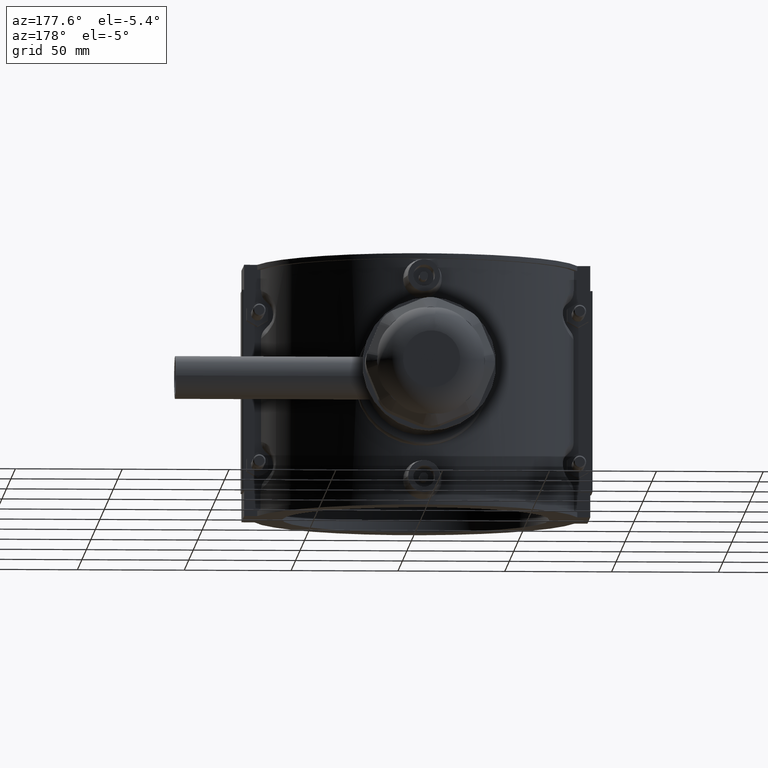
[diagram: clean part render]
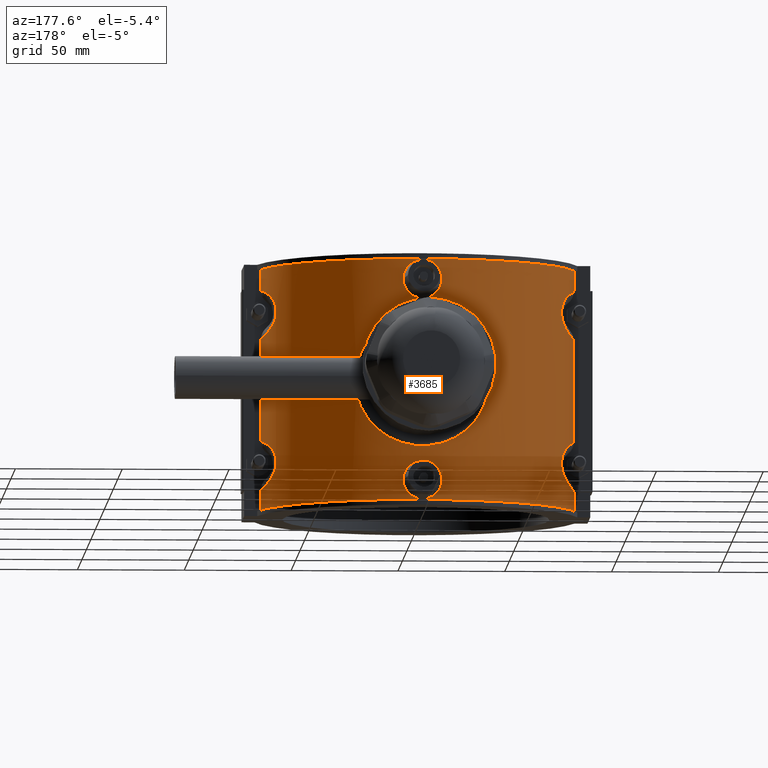
[diagram: same view with one face highlighted and labeled with its STEP entity id]
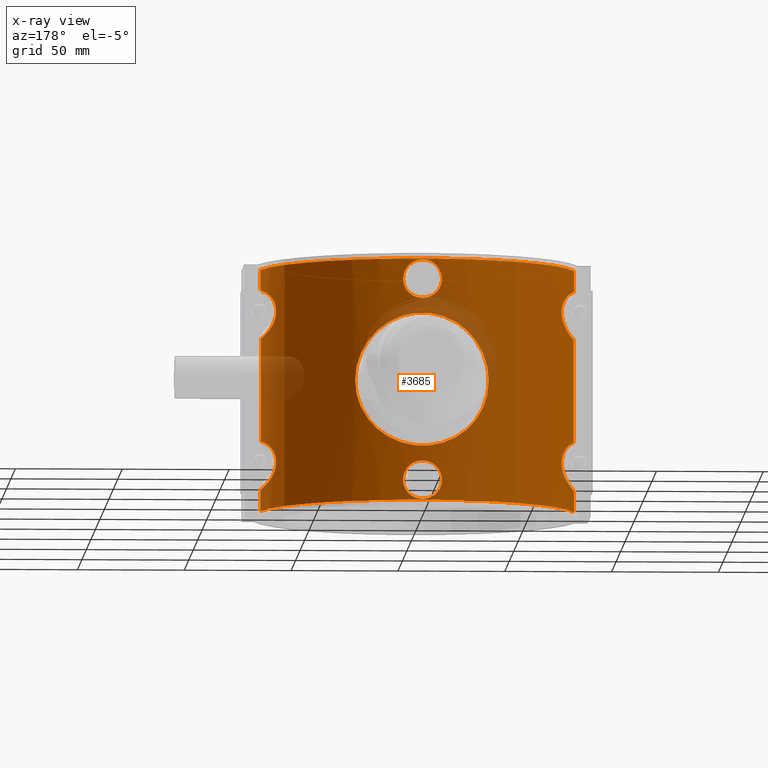
[diagram: x-ray of the same camera — body ghosted, the highlighted face saturated]
A machine part, auxiliary view. The second image highlights one B-rep face of the part: STEP entity #3685.
The next image is the same camera in x-ray: the body ghosted, the highlighted face saturated — about 7% of this face is hidden behind the body in this view.
In plain terms, the highlighted cylindrical surface (partial cylindrical patch) has radius 75 mm, axis along (0, 0, 1).
Its self-contained STEP definition (entity closure, byte-faithful):
#117=LINE('',#6462,#416);
#133=LINE('',#6510,#432);
#137=LINE('',#6518,#436);
#138=LINE('',#6522,#437);
#139=LINE('',#6539,#438);
#140=LINE('',#6556,#439);
#141=LINE('',#6559,#440);
#142=LINE('',#6563,#441);
#143=LINE('',#6580,#442);
#144=LINE('',#6597,#443);
#416=VECTOR('',#4437,9.43999999999999);
#432=VECTOR('',#4479,9.43999999999999);
#436=VECTOR('',#4485,9.43999999999999);
#437=VECTOR('',#4488,0.588591724710401);
#438=VECTOR('',#4489,48.3771834494208);
#439=VECTOR('',#4490,0.588591724710401);
#440=VECTOR('',#4493,9.43999999999999);
#441=VECTOR('',#4496,0.58859172471041);
#442=VECTOR('',#4497,48.3771834494208);
#443=VECTOR('',#4498,0.588591724710401);
#823=CIRCLE('',#3926,75.);
#830=CIRCLE('',#3939,75.);
#834=CIRCLE('',#3947,75.);
#835=CIRCLE('',#3948,75.);
#836=CIRCLE('',#3949,75.);
#837=CIRCLE('',#3950,75.);
#917=FACE_BOUND('',#1276,.T.);
#918=FACE_BOUND('',#1277,.T.);
#919=FACE_BOUND('',#1278,.T.);
#1039=FACE_OUTER_BOUND('',#1275,.T.);
#1275=EDGE_LOOP('',(#2821,#2822,#2823,#2824,#2825,#2826,#2827,#2828,#2829,
#2830,#2831,#2832,#2833,#2834,#2835,#2836,#2837,#2838,#2839,#2840));
#1276=EDGE_LOOP('',(#2841));
#1277=EDGE_LOOP('',(#2842));
#1278=EDGE_LOOP('',(#2843));
#1511=B_SPLINE_CURVE_WITH_KNOTS('',3,(#6364,#6365,#6366,#6367,#6368,#6369,
#6370,#6371,#6372,#6373,#6374,#6375,#6376,#6377,#6378,#6379,#6380,#6381,
#6382,#6383,#6384,#6385,#6386,#6387,#6388,#6389,#6390,#6391,#6392,#6393,
#6394,#6395,#6396,#6397,#6398,#6399,#6400,#6401,#6402,#6403,#6404,#6405,
#6406,#6407,#6408,#6409,#6410,#6411,#6412,#6413,#6414,#6415,#6416,#6417,
#6418,#6419,#6420,#6421,#6422,#6423,#6424,#6425,#6426,#6427,#6428,#6429),
 .UNSPECIFIED.,.T.,.F.,(4,2,2,2,2,2,2,2,2,2,2,2,2,2,2,2,2,2,2,2,2,2,2,2,
2,2,2,2,2,2,2,2,4),(0.,0.596925535406066,1.19385107081213,1.7907766062182,
2.38770214162426,2.98390635362242,3.58011056562057,4.17631477761873,4.77251898961688,
5.36872320161503,5.96492741361319,6.56113162561134,7.1573358376095,7.75426137301556,
8.35118690842163,8.94811244382769,9.54503797923376,10.1419635146398,10.7388890500459,
11.335814585452,11.932740120858,12.5289443328562,13.1251485448543,13.7213527568525,
14.3175569688506,14.9137611808488,15.5099653928469,16.1061696048451,16.7023738168433,
17.2992993522493,17.8962248876554,18.4931504230615,19.0900759584675),
 .UNSPECIFIED.);
#1512=B_SPLINE_CURVE_WITH_KNOTS('',3,(#6524,#6525,#6526,#6527,#6528,#6529,
#6530,#6531,#6532,#6533,#6534,#6535,#6536,#6537),.UNSPECIFIED.,.F.,.F.,
(4,1,1,1,1,1,1,1,1,1,1,4),(-5.00102073920075,-4.37242310409207,-3.7438254689834,
-3.53429292394718,-3.11522783387473,-2.90569528883851,-2.69616274380228,
-2.48663019876606,-2.17233138121172,-1.85803256365739,-1.22943492854871,
-0.600837293440042),.UNSPECIFIED.);
#1513=B_SPLINE_CURVE_WITH_KNOTS('',3,(#6541,#6542,#6543,#6544,#6545,#6546,
#6547,#6548,#6549,#6550,#6551,#6552,#6553,#6554),.UNSPECIFIED.,.F.,.F.,
(4,1,1,1,1,1,1,1,1,1,1,4),(-5.00102073958228,-4.37242310439151,-3.74382546920074,
-3.42952665160536,-3.11522783400997,-2.69616274388279,-2.4866301988192,
-2.27709765375561,-2.06756510869202,-1.85803256362843,-1.22943492843766,
-0.600837293246895),.UNSPECIFIED.);
#1514=B_SPLINE_CURVE_WITH_KNOTS('',3,(#6565,#6566,#6567,#6568,#6569,#6570,
#6571,#6572,#6573,#6574,#6575,#6576,#6577,#6578),.UNSPECIFIED.,.F.,.F.,
(4,1,1,1,1,1,1,1,1,1,1,4),(-5.00088645742513,-4.37228881969447,-3.74369118196381,
-3.42939236309848,-3.11509354423315,-2.69602845241271,-2.48649590650249,
-2.27696336059227,-2.06743081468205,-1.85789826877183,-1.22930063104117,
-0.600702993310512),.UNSPECIFIED.);
#1515=B_SPLINE_CURVE_WITH_KNOTS('',3,(#6582,#6583,#6584,#6585,#6586,#6587,
#6588,#6589,#6590,#6591,#6592,#6593,#6594,#6595),.UNSPECIFIED.,.F.,.F.,
(4,1,1,1,1,1,1,1,1,1,1,4),(-5.00102073914786,-4.37242310379837,-3.74382546844888,
-3.42952665077414,-3.11522783309939,-2.9056952879829,-2.4866301977499,-2.27709765263341,
-2.06756510751691,-1.85803256240042,-1.22943492705093,-0.600837291701439),
 .UNSPECIFIED.);
#1516=B_SPLINE_CURVE_WITH_KNOTS('',3,(#6600,#6601,#6602,#6603,#6604,#6605,
#6606,#6607,#6608,#6609,#6610,#6611,#6612,#6613,#6614,#6615,#6616,#6617,
#6618,#6619,#6620,#6621,#6622,#6623,#6624,#6625,#6626,#6627,#6628,#6629,
#6630,#6631,#6632,#6633),.UNSPECIFIED.,.T.,.F.,(4,2,2,2,2,2,2,2,2,2,2,2,
2,2,2,2,4),(0.,0.341668696491551,0.683337392983103,1.02458425500419,1.36583111702527,
1.70707797904636,2.04832484106744,2.38999353755899,2.73166223405054,3.0733309305421,
3.41499962703365,3.75624648905473,4.09749335107582,4.4387402130969,4.77998707511798,
5.12165577160954,5.46332446810109),.UNSPECIFIED.);
#1517=B_SPLINE_CURVE_WITH_KNOTS('',3,(#6635,#6636,#6637,#6638,#6639,#6640,
#6641,#6642,#6643,#6644,#6645,#6646,#6647,#6648,#6649,#6650,#6651,#6652,
#6653,#6654,#6655,#6656,#6657,#6658,#6659,#6660,#6661,#6662,#6663,#6664,
#6665,#6666,#6667,#6668),.UNSPECIFIED.,.T.,.F.,(4,2,2,2,2,2,2,2,2,2,2,2,
2,2,2,2,4),(0.,0.341668696491551,0.683337392983103,1.02458425500419,1.36583111702527,
1.70707797904636,2.04832484106744,2.38999353755899,2.73166223405054,3.0733309305421,
3.41499962703365,3.75624648905473,4.09749335107582,4.4387402130969,4.77998707511798,
5.12165577160954,5.46332446810109),.UNSPECIFIED.);
#1668=VERTEX_POINT('',#6363);
#1673=VERTEX_POINT('',#6440);
#1674=VERTEX_POINT('',#6442);
#1681=VERTEX_POINT('',#6461);
#1692=VERTEX_POINT('',#6488);
#1693=VERTEX_POINT('',#6490);
#1700=VERTEX_POINT('',#6509);
#1703=VERTEX_POINT('',#6517);
#1704=VERTEX_POINT('',#6519);
#1705=VERTEX_POINT('',#6521);
#1706=VERTEX_POINT('',#6523);
#1707=VERTEX_POINT('',#6538);
#1708=VERTEX_POINT('',#6540);
#1709=VERTEX_POINT('',#6555);
#1710=VERTEX_POINT('',#6558);
#1711=VERTEX_POINT('',#6560);
#1712=VERTEX_POINT('',#6562);
#1713=VERTEX_POINT('',#6564);
#1714=VERTEX_POINT('',#6579);
#1715=VERTEX_POINT('',#6581);
#1716=VERTEX_POINT('',#6596);
#1717=VERTEX_POINT('',#6599);
#1718=VERTEX_POINT('',#6634);
#2080=EDGE_CURVE('',#1668,#1668,#1511,.T.);
#2087=EDGE_CURVE('',#1673,#1674,#823,.T.);
#2095=EDGE_CURVE('',#1681,#1673,#117,.T.);
#2109=EDGE_CURVE('',#1693,#1692,#830,.T.);
#2118=EDGE_CURVE('',#1693,#1700,#133,.T.);
#2122=EDGE_CURVE('',#1703,#1674,#137,.T.);
#2123=EDGE_CURVE('',#1703,#1704,#834,.T.);
#2124=EDGE_CURVE('',#1704,#1705,#138,.T.);
#2125=EDGE_CURVE('',#1706,#1705,#1512,.T.);
#2126=EDGE_CURVE('',#1706,#1707,#139,.T.);
#2127=EDGE_CURVE('',#1708,#1707,#1513,.T.);
#2128=EDGE_CURVE('',#1708,#1709,#140,.T.);
#2129=EDGE_CURVE('',#1709,#1700,#835,.T.);
#2130=EDGE_CURVE('',#1692,#1710,#141,.T.);
#2131=EDGE_CURVE('',#1710,#1711,#836,.T.);
#2132=EDGE_CURVE('',#1711,#1712,#142,.T.);
#2133=EDGE_CURVE('',#1713,#1712,#1514,.T.);
#2134=EDGE_CURVE('',#1713,#1714,#143,.T.);
#2135=EDGE_CURVE('',#1715,#1714,#1515,.T.);
#2136=EDGE_CURVE('',#1715,#1716,#144,.T.);
#2137=EDGE_CURVE('',#1716,#1681,#837,.T.);
#2138=EDGE_CURVE('',#1717,#1717,#1516,.T.);
#2139=EDGE_CURVE('',#1718,#1718,#1517,.T.);
#2821=ORIENTED_EDGE('',*,*,#2087,.T.);
#2822=ORIENTED_EDGE('',*,*,#2122,.F.);
#2823=ORIENTED_EDGE('',*,*,#2123,.T.);
#2824=ORIENTED_EDGE('',*,*,#2124,.T.);
#2825=ORIENTED_EDGE('',*,*,#2125,.F.);
#2826=ORIENTED_EDGE('',*,*,#2126,.T.);
#2827=ORIENTED_EDGE('',*,*,#2127,.F.);
#2828=ORIENTED_EDGE('',*,*,#2128,.T.);
#2829=ORIENTED_EDGE('',*,*,#2129,.T.);
#2830=ORIENTED_EDGE('',*,*,#2118,.F.);
#2831=ORIENTED_EDGE('',*,*,#2109,.T.);
#2832=ORIENTED_EDGE('',*,*,#2130,.T.);
#2833=ORIENTED_EDGE('',*,*,#2131,.T.);
#2834=ORIENTED_EDGE('',*,*,#2132,.T.);
#2835=ORIENTED_EDGE('',*,*,#2133,.F.);
#2836=ORIENTED_EDGE('',*,*,#2134,.T.);
#2837=ORIENTED_EDGE('',*,*,#2135,.F.);
#2838=ORIENTED_EDGE('',*,*,#2136,.T.);
#2839=ORIENTED_EDGE('',*,*,#2137,.T.);
#2840=ORIENTED_EDGE('',*,*,#2095,.T.);
#2841=ORIENTED_EDGE('',*,*,#2080,.T.);
#2842=ORIENTED_EDGE('',*,*,#2138,.T.);
#2843=ORIENTED_EDGE('',*,*,#2139,.T.);
#3568=CYLINDRICAL_SURFACE('',#3946,75.);
#3685=ADVANCED_FACE('',(#1039,#917,#918,#919),#3568,.T.);
#3926=AXIS2_PLACEMENT_3D('',#6444,#4419,#4420);
#3939=AXIS2_PLACEMENT_3D('',#6491,#4460,#4461);
#3946=AXIS2_PLACEMENT_3D('',#6516,#4483,#4484);
#3947=AXIS2_PLACEMENT_3D('',#6520,#4486,#4487);
#3948=AXIS2_PLACEMENT_3D('',#6557,#4491,#4492);
#3949=AXIS2_PLACEMENT_3D('',#6561,#4494,#4495);
#3950=AXIS2_PLACEMENT_3D('',#6598,#4499,#4500);
#4419=DIRECTION('center_axis',(0.,0.,1.));
#4420=DIRECTION('ref_axis',(1.,0.,0.));
#4437=DIRECTION('',(0.,0.,-1.));
#4460=DIRECTION('center_axis',(0.,0.,-1.));
#4461=DIRECTION('ref_axis',(1.,0.,0.));
#4479=DIRECTION('',(0.,0.,-1.));
#4483=DIRECTION('center_axis',(0.,0.,1.));
#4484=DIRECTION('ref_axis',(1.,0.,0.));
#4485=DIRECTION('',(0.,0.,-1.));
#4486=DIRECTION('center_axis',(0.,0.,-1.));
#4487=DIRECTION('ref_axis',(1.,0.,0.));
#4488=DIRECTION('',(0.,0.,1.));
#4489=DIRECTION('',(0.,0.,1.));
#4490=DIRECTION('',(0.,0.,1.));
#4491=DIRECTION('center_axis',(0.,0.,1.));
#4492=DIRECTION('ref_axis',(1.,0.,0.));
#4493=DIRECTION('',(0.,0.,-1.));
#4494=DIRECTION('center_axis',(0.,0.,1.));
#4495=DIRECTION('ref_axis',(1.,0.,0.));
#4496=DIRECTION('',(0.,0.,-1.));
#4497=DIRECTION('',(0.,0.,-1.));
#4498=DIRECTION('',(0.,0.,-1.));
#4499=DIRECTION('center_axis',(0.,0.,-1.));
#4500=DIRECTION('ref_axis',(1.,0.,0.));
#6363=CARTESIAN_POINT('',(31.25,68.1794507164732,5.55111512312578E-16));
#6364=CARTESIAN_POINT('Ctrl Pts',(31.25,68.1794507164732,0.));
#6365=CARTESIAN_POINT('Ctrl Pts',(31.25,68.1794507164732,1.98975178468689));
#6366=CARTESIAN_POINT('Ctrl Pts',(31.0569252361218,68.2690339030925,4.03828356705892));
#6367=CARTESIAN_POINT('Ctrl Pts',(30.2538022709298,68.6287187905002,8.09615884106484));
#6368=CARTESIAN_POINT('Ctrl Pts',(29.6440269951615,68.8983606477932,10.1055970911061));
#6369=CARTESIAN_POINT('Ctrl Pts',(28.0426490976936,69.5655241791259,13.9463758291996));
#6370=CARTESIAN_POINT('Ctrl Pts',(27.0497768419399,69.962791144864,15.7812348148193));
#6371=CARTESIAN_POINT('Ctrl Pts',(24.7644581549353,70.8039842379961,19.1692308714715));
#6372=CARTESIAN_POINT('Ctrl Pts',(23.4717648973439,71.2470745027844,20.7224089268153));
#6373=CARTESIAN_POINT('Ctrl Pts',(20.7240700844477,72.0942251051234,23.4701037397115));
#6374=CARTESIAN_POINT('Ctrl Pts',(19.1716938898946,72.5291753758607,24.7625812492182));
#6375=CARTESIAN_POINT('Ctrl Pts',(15.783298291342,73.3411386760727,27.048600185002));
#6376=CARTESIAN_POINT('Ctrl Pts',(13.9472339662247,73.7174654318418,28.042318728121));
#6377=CARTESIAN_POINT('Ctrl Pts',(10.1040031819991,74.3417726846631,29.644664133179));
#6378=CARTESIAN_POINT('Ctrl Pts',(8.09335150182213,74.5898263663282,30.2545652748952));
#6379=CARTESIAN_POINT('Ctrl Pts',(4.03505621609583,74.9190420202259,31.0573562920232));
#6380=CARTESIAN_POINT('Ctrl Pts',(1.98734737332718,75.,31.25));
#6381=CARTESIAN_POINT('Ctrl Pts',(-1.98734737332718,75.,31.25));
#6382=CARTESIAN_POINT('Ctrl Pts',(-4.03505621609582,74.9190420202259,31.0573562920232));
#6383=CARTESIAN_POINT('Ctrl Pts',(-8.09335150182212,74.5898263663282,30.2545652748952));
#6384=CARTESIAN_POINT('Ctrl Pts',(-10.104003181999,74.3417726846631,29.644664133179));
#6385=CARTESIAN_POINT('Ctrl Pts',(-13.9472339662247,73.7174654318418,28.042318728121));
#6386=CARTESIAN_POINT('Ctrl Pts',(-15.783298291342,73.3411386760727,27.048600185002));
#6387=CARTESIAN_POINT('Ctrl Pts',(-19.1716938898946,72.5291753758607,24.7625812492182));
#6388=CARTESIAN_POINT('Ctrl Pts',(-20.7240700844477,72.0942251051234,23.4701037397115));
#6389=CARTESIAN_POINT('Ctrl Pts',(-23.4717648973439,71.2470745027844,20.7224089268153));
#6390=CARTESIAN_POINT('Ctrl Pts',(-24.7644581549353,70.8039842379961,19.1692308714715));
#6391=CARTESIAN_POINT('Ctrl Pts',(-27.0497768419399,69.962791144864,15.7812348148193));
#6392=CARTESIAN_POINT('Ctrl Pts',(-28.0426490976936,69.5655241791259,13.9463758291996));
#6393=CARTESIAN_POINT('Ctrl Pts',(-29.6440269951615,68.8983606477932,10.1055970911061));
#6394=CARTESIAN_POINT('Ctrl Pts',(-30.2538022709298,68.6287187905002,8.09615884106485));
#6395=CARTESIAN_POINT('Ctrl Pts',(-31.0569252361218,68.2690339030925,4.03828356705892));
#6396=CARTESIAN_POINT('Ctrl Pts',(-31.25,68.1794507164732,1.98975178468689));
#6397=CARTESIAN_POINT('Ctrl Pts',(-31.25,68.1794507164732,-1.98975178468688));
#6398=CARTESIAN_POINT('Ctrl Pts',(-31.0569252361218,68.2690339030925,-4.03828356705891));
#6399=CARTESIAN_POINT('Ctrl Pts',(-30.2538022709298,68.6287187905002,-8.09615884106484));
#6400=CARTESIAN_POINT('Ctrl Pts',(-29.6440269951615,68.8983606477932,-10.1055970911061));
#6401=CARTESIAN_POINT('Ctrl Pts',(-28.0426490976936,69.5655241791259,-13.9463758291996));
#6402=CARTESIAN_POINT('Ctrl Pts',(-27.0497768419399,69.962791144864,-15.7812348148193));
#6403=CARTESIAN_POINT('Ctrl Pts',(-24.7644581549353,70.8039842379961,-19.1692308714715));
#6404=CARTESIAN_POINT('Ctrl Pts',(-23.4717648973439,71.2470745027844,-20.7224089268153));
#6405=CARTESIAN_POINT('Ctrl Pts',(-20.7240700844477,72.0942251051234,-23.4701037397115));
#6406=CARTESIAN_POINT('Ctrl Pts',(-19.1716938898946,72.5291753758607,-24.7625812492182));
#6407=CARTESIAN_POINT('Ctrl Pts',(-15.783298291342,73.3411386760727,-27.048600185002));
#6408=CARTESIAN_POINT('Ctrl Pts',(-13.9472339662247,73.7174654318418,-28.042318728121));
#6409=CARTESIAN_POINT('Ctrl Pts',(-10.104003181999,74.3417726846631,-29.644664133179));
#6410=CARTESIAN_POINT('Ctrl Pts',(-8.09335150182214,74.5898263663282,-30.2545652748952));
#6411=CARTESIAN_POINT('Ctrl Pts',(-4.03505621609584,74.9190420202259,-31.0573562920232));
#6412=CARTESIAN_POINT('Ctrl Pts',(-1.98734737332719,75.,-31.25));
#6413=CARTESIAN_POINT('Ctrl Pts',(1.98734737332718,75.,-31.25));
#6414=CARTESIAN_POINT('Ctrl Pts',(4.03505621609583,74.9190420202259,-31.0573562920232));
#6415=CARTESIAN_POINT('Ctrl Pts',(8.09335150182213,74.5898263663282,-30.2545652748952));
#6416=CARTESIAN_POINT('Ctrl Pts',(10.104003181999,74.3417726846631,-29.644664133179));
#6417=CARTESIAN_POINT('Ctrl Pts',(13.9472339662247,73.7174654318418,-28.042318728121));
#6418=CARTESIAN_POINT('Ctrl Pts',(15.783298291342,73.3411386760727,-27.048600185002));
#6419=CARTESIAN_POINT('Ctrl Pts',(19.1716938898946,72.5291753758607,-24.7625812492182));
#6420=CARTESIAN_POINT('Ctrl Pts',(20.7240700844477,72.0942251051234,-23.4701037397115));
#6421=CARTESIAN_POINT('Ctrl Pts',(23.4717648973439,71.2470745027844,-20.7224089268153));
#6422=CARTESIAN_POINT('Ctrl Pts',(24.7644581549353,70.8039842379961,-19.1692308714715));
#6423=CARTESIAN_POINT('Ctrl Pts',(27.0497768419399,69.962791144864,-15.7812348148193));
#6424=CARTESIAN_POINT('Ctrl Pts',(28.0426490976936,69.5655241791259,-13.9463758291996));
#6425=CARTESIAN_POINT('Ctrl Pts',(29.6440269951615,68.8983606477932,-10.1055970911062));
#6426=CARTESIAN_POINT('Ctrl Pts',(30.2538022709298,68.6287187905002,-8.09615884106487));
#6427=CARTESIAN_POINT('Ctrl Pts',(31.0569252361218,68.2690339030925,-4.03828356705894));
#6428=CARTESIAN_POINT('Ctrl Pts',(31.25,68.1794507164732,-1.9897517846869));
#6429=CARTESIAN_POINT('Ctrl Pts',(31.25,68.1794507164732,-1.11022302462516E-15));
#6440=CARTESIAN_POINT('',(73.3543412144094,15.625,-56.64));
#6442=CARTESIAN_POINT('',(-73.3543412144094,15.625,-56.64));
#6444=CARTESIAN_POINT('Origin',(0.,0.,-56.64));
#6461=CARTESIAN_POINT('',(73.3543412144094,15.625,-47.2));
#6462=CARTESIAN_POINT('',(73.3543412144094,15.625,0.));
#6488=CARTESIAN_POINT('',(73.3543412144094,15.625,56.64));
#6490=CARTESIAN_POINT('',(-73.3543412144094,15.625,56.64));
#6491=CARTESIAN_POINT('Origin',(0.,0.,56.64));
#6509=CARTESIAN_POINT('',(-73.3543412144094,15.625,47.2));
#6510=CARTESIAN_POINT('',(-73.3543412144094,15.625,0.));
#6516=CARTESIAN_POINT('Origin',(0.,0.,0.));
#6517=CARTESIAN_POINT('',(-73.3543412144094,15.625,-47.2));
#6518=CARTESIAN_POINT('',(-73.3543412144094,15.625,0.));
#6519=CARTESIAN_POINT('',(-73.13418745703,16.6250000000001,-47.2));
#6520=CARTESIAN_POINT('Origin',(0.,0.,-47.2));
#6521=CARTESIAN_POINT('',(-73.13418745703,16.625,-46.6114082752896));
#6522=CARTESIAN_POINT('',(-73.13418745703,16.6250000000001,0.));
#6523=CARTESIAN_POINT('',(-73.13418745703,16.625,-24.1885917247104));
#6524=CARTESIAN_POINT('Ctrl Pts',(-73.13418745703,16.625,-24.1885917247104));
#6525=CARTESIAN_POINT('Ctrl Pts',(-72.6336306341122,18.8269739260247,-24.5143801333608));
#6526=CARTESIAN_POINT('Ctrl Pts',(-71.4418534279628,23.1499185109787,-25.368236125087));
#6527=CARTESIAN_POINT('Ctrl Pts',(-69.6806255586373,27.840746802479,-27.1723961464241));
#6528=CARTESIAN_POINT('Ctrl Pts',(-68.1741453567587,31.303413805712,-29.5468945375646));
#6529=CARTESIAN_POINT('Ctrl Pts',(-67.2648547537538,33.1862035054787,-31.6585072858936));
#6530=CARTESIAN_POINT('Ctrl Pts',(-66.8040851814724,34.0914282615685,-34.337511031392));
#6531=CARTESIAN_POINT('Ctrl Pts',(-66.8051920972532,34.089700157877,-36.4622377441605));
#6532=CARTESIAN_POINT('Ctrl Pts',(-67.2044527904934,33.3037245652089,-38.8042600677748));
#6533=CARTESIAN_POINT('Ctrl Pts',(-68.0462917981667,31.5725060947776,-41.0183355651381));
#6534=CARTESIAN_POINT('Ctrl Pts',(-69.5573128023626,28.1719124534557,-43.4998799253462));
#6535=CARTESIAN_POINT('Ctrl Pts',(-71.441198493018,23.150932681923,-45.4310481636331));
#6536=CARTESIAN_POINT('Ctrl Pts',(-72.6336306341122,18.8269739260247,-46.2856198666392));
#6537=CARTESIAN_POINT('Ctrl Pts',(-73.13418745703,16.625,-46.6114082752896));
#6538=CARTESIAN_POINT('',(-73.13418745703,16.625,24.1885917247104));
#6539=CARTESIAN_POINT('',(-73.13418745703,16.6250000000001,0.));
#6540=CARTESIAN_POINT('',(-73.13418745703,16.625,46.6114082752896));
#6541=CARTESIAN_POINT('Ctrl Pts',(-73.13418745703,16.625,46.6114082752896));
#6542=CARTESIAN_POINT('Ctrl Pts',(-72.6336306339315,18.8269739268198,46.2856198665216));
#6543=CARTESIAN_POINT('Ctrl Pts',(-71.4427216108555,23.1485438629937,45.4299658191904));
#6544=CARTESIAN_POINT('Ctrl Pts',(-69.5543784617257,28.1765160876207,43.5020171112231));
#6545=CARTESIAN_POINT('Ctrl Pts',(-68.0496424652953,31.5672524769392,41.0160063504019));
#6546=CARTESIAN_POINT('Ctrl Pts',(-66.9843692457632,33.7516280315791,38.2577523269318));
#6547=CARTESIAN_POINT('Ctrl Pts',(-66.6787049997661,34.3337220553098,35.0139694985448));
#6548=CARTESIAN_POINT('Ctrl Pts',(-67.1498818476582,33.4121471135042,32.3289801943148));
#6549=CARTESIAN_POINT('Ctrl Pts',(-67.7213022674983,32.2420177581503,30.5992760844295));
#6550=CARTESIAN_POINT('Ctrl Pts',(-68.4244379392239,30.7275409379121,29.1512548204943));
#6551=CARTESIAN_POINT('Ctrl Pts',(-69.6806413612041,27.8407564829224,27.1700700811233));
#6552=CARTESIAN_POINT('Ctrl Pts',(-71.445147805742,23.1447338498214,25.3707632004619));
#6553=CARTESIAN_POINT('Ctrl Pts',(-72.6336306339315,18.8269739268198,24.5143801334785));
#6554=CARTESIAN_POINT('Ctrl Pts',(-73.13418745703,16.625,24.1885917247104));
#6555=CARTESIAN_POINT('',(-73.13418745703,16.6250000000001,47.2));
#6556=CARTESIAN_POINT('',(-73.13418745703,16.6250000000001,0.));
#6557=CARTESIAN_POINT('Origin',(0.,0.,47.2));
#6558=CARTESIAN_POINT('',(73.3543412144094,15.625,47.2));
#6559=CARTESIAN_POINT('',(73.3543412144094,15.625,0.));
#6560=CARTESIAN_POINT('',(73.13418745703,16.6250000000001,47.2));
#6561=CARTESIAN_POINT('Origin',(0.,0.,47.2));
#6562=CARTESIAN_POINT('',(73.13418745703,16.625,46.6114082752896));
#6563=CARTESIAN_POINT('',(73.13418745703,16.6250000000001,0.));
#6564=CARTESIAN_POINT('',(73.13418745703,16.625,24.1885917247104));
#6565=CARTESIAN_POINT('Ctrl Pts',(73.13418745703,16.625,24.1885917247104));
#6566=CARTESIAN_POINT('Ctrl Pts',(72.6336306395027,18.8269739023119,24.5143801298524));
#6567=CARTESIAN_POINT('Ctrl Pts',(71.4427216278044,23.1485438089075,25.3700341680455));
#6568=CARTESIAN_POINT('Ctrl Pts',(69.5543784824586,28.1765160374488,27.2979828622254));
#6569=CARTESIAN_POINT('Ctrl Pts',(68.0496424728506,31.5672524613315,29.7839936327724));
#6570=CARTESIAN_POINT('Ctrl Pts',(66.9843692481581,33.751628026616,32.5422476602084));
#6571=CARTESIAN_POINT('Ctrl Pts',(66.6787049985217,34.3337220577011,35.7860305034891));
#6572=CARTESIAN_POINT('Ctrl Pts',(67.1498818503303,33.4121471082138,38.4710198170828));
#6573=CARTESIAN_POINT('Ctrl Pts',(67.7213022742139,32.2420177439967,40.2007239322661));
#6574=CARTESIAN_POINT('Ctrl Pts',(68.4244379490698,30.7275409163158,41.6487451976327));
#6575=CARTESIAN_POINT('Ctrl Pts',(69.6806413807054,27.8407564351546,43.6299299436072));
#6576=CARTESIAN_POINT('Ctrl Pts',(71.4451478244458,23.1447337914717,45.4292368140713));
#6577=CARTESIAN_POINT('Ctrl Pts',(72.6336306395027,18.8269739023119,46.2856198701476));
#6578=CARTESIAN_POINT('Ctrl Pts',(73.13418745703,16.625,46.6114082752896));
#6579=CARTESIAN_POINT('',(73.13418745703,16.625,-24.1885917247104));
#6580=CARTESIAN_POINT('',(73.13418745703,16.6250000000001,0.));
#6581=CARTESIAN_POINT('',(73.13418745703,16.625,-46.6114082752896));
#6582=CARTESIAN_POINT('Ctrl Pts',(73.13418745703,16.625,-46.6114082752896));
#6583=CARTESIAN_POINT('Ctrl Pts',(72.6336306335822,18.8269739283565,-46.2856198662942));
#6584=CARTESIAN_POINT('Ctrl Pts',(71.4408092165106,23.1515428310723,-45.4308286396173));
#6585=CARTESIAN_POINT('Ctrl Pts',(69.5584024022179,28.1702048447063,-43.5008755696704));
#6586=CARTESIAN_POINT('Ctrl Pts',(68.0457685996165,31.573326391107,-41.0184205404252));
#6587=CARTESIAN_POINT('Ctrl Pts',(67.2073312950017,33.2992134499301,-38.8069632980878));
#6588=CARTESIAN_POINT('Ctrl Pts',(66.6852631086953,34.3234413546625,-35.7902548681309));
#6589=CARTESIAN_POINT('Ctrl Pts',(66.9429518491682,33.8279973243993,-32.900058742777));
#6590=CARTESIAN_POINT('Ctrl Pts',(67.7243937922213,32.2371712924233,-30.5993653107632));
#6591=CARTESIAN_POINT('Ctrl Pts',(68.4218936611557,30.731531494911,-29.1500426621685));
#6592=CARTESIAN_POINT('Ctrl Pts',(69.6816423335427,27.8391875452614,-27.1699565967457));
#6593=CARTESIAN_POINT('Ctrl Pts',(71.4435546510838,23.1472322476888,-25.3702175878445));
#6594=CARTESIAN_POINT('Ctrl Pts',(72.6336306335822,18.8269739283565,-24.5143801337058));
#6595=CARTESIAN_POINT('Ctrl Pts',(73.13418745703,16.625,-24.1885917247104));
#6596=CARTESIAN_POINT('',(73.13418745703,16.6250000000001,-47.2));
#6597=CARTESIAN_POINT('',(73.13418745703,16.6250000000001,0.));
#6598=CARTESIAN_POINT('Origin',(0.,0.,-47.2));
#6599=CARTESIAN_POINT('',(9.0793092533136,74.4484126323906,-47.2));
#6600=CARTESIAN_POINT('Ctrl Pts',(9.0793092533136,74.4484126323906,-47.2));
#6601=CARTESIAN_POINT('Ctrl Pts',(9.0793092533136,74.4484126323906,-46.0611043450282));
#6602=CARTESIAN_POINT('Ctrl Pts',(8.84946113589686,74.4775577133318,-44.8478007545603));
#6603=CARTESIAN_POINT('Ctrl Pts',(7.91818152844378,74.5823166978625,-42.6193985559919));
#6604=CARTESIAN_POINT('Ctrl Pts',(7.21684973308405,74.6563698188581,-41.604185186368));
#6605=CARTESIAN_POINT('Ctrl Pts',(5.60331245542121,74.7947708340694,-40.0044126497905));
#6606=CARTESIAN_POINT('Ctrl Pts',(4.58361091651927,74.8681481668674,-39.3122964536791));
#6607=CARTESIAN_POINT('Ctrl Pts',(2.35073887920452,74.9714820813101,-38.3945491238737));
#6608=CARTESIAN_POINT('Ctrl Pts',(1.13748954007028,75.,-38.1689483882964));
#6609=CARTESIAN_POINT('Ctrl Pts',(-1.13748954007028,75.,-38.1689483882964));
#6610=CARTESIAN_POINT('Ctrl Pts',(-2.35073887920452,74.9714820813101,-38.3945491238737));
#6611=CARTESIAN_POINT('Ctrl Pts',(-4.58361091651926,74.8681481668674,-39.3122964536791));
#6612=CARTESIAN_POINT('Ctrl Pts',(-5.60331245542121,74.7947708340694,-40.0044126497905));
#6613=CARTESIAN_POINT('Ctrl Pts',(-7.21684973308405,74.6563698188581,-41.604185186368));
#6614=CARTESIAN_POINT('Ctrl Pts',(-7.91818152844378,74.5823166978625,-42.6193985559919));
#6615=CARTESIAN_POINT('Ctrl Pts',(-8.84946113589686,74.4775577133318,-44.8478007545603));
#6616=CARTESIAN_POINT('Ctrl Pts',(-9.0793092533136,74.4484126323906,-46.0611043450282));
#6617=CARTESIAN_POINT('Ctrl Pts',(-9.0793092533136,74.4484126323906,-48.3388956549719));
#6618=CARTESIAN_POINT('Ctrl Pts',(-8.84946113589685,74.4775577133318,-49.5521992454398));
#6619=CARTESIAN_POINT('Ctrl Pts',(-7.91818152844378,74.5823166978625,-51.7806014440082));
#6620=CARTESIAN_POINT('Ctrl Pts',(-7.21684973308406,74.6563698188581,-52.795814813632));
#6621=CARTESIAN_POINT('Ctrl Pts',(-5.60331245542121,74.7947708340694,-54.3955873502096));
#6622=CARTESIAN_POINT('Ctrl Pts',(-4.58361091651926,74.8681481668674,-55.0877035463209));
#6623=CARTESIAN_POINT('Ctrl Pts',(-2.35073887920452,74.9714820813101,-56.0054508761263));
#6624=CARTESIAN_POINT('Ctrl Pts',(-1.13748954007028,75.,-56.2310516117037));
#6625=CARTESIAN_POINT('Ctrl Pts',(1.13748954007028,75.,-56.2310516117037));
#6626=CARTESIAN_POINT('Ctrl Pts',(2.35073887920452,74.9714820813101,-56.0054508761263));
#6627=CARTESIAN_POINT('Ctrl Pts',(4.58361091651926,74.8681481668674,-55.0877035463209));
#6628=CARTESIAN_POINT('Ctrl Pts',(5.60331245542121,74.7947708340694,-54.3955873502096));
#6629=CARTESIAN_POINT('Ctrl Pts',(7.21684973308405,74.6563698188581,-52.795814813632));
#6630=CARTESIAN_POINT('Ctrl Pts',(7.91818152844378,74.5823166978625,-51.7806014440082));
#6631=CARTESIAN_POINT('Ctrl Pts',(8.84946113589685,74.4775577133318,-49.5521992454398));
#6632=CARTESIAN_POINT('Ctrl Pts',(9.0793092533136,74.4484126323906,-48.3388956549719));
#6633=CARTESIAN_POINT('Ctrl Pts',(9.0793092533136,74.4484126323906,-47.2));
#6634=CARTESIAN_POINT('',(9.0793092533136,74.4484126323906,47.2));
#6635=CARTESIAN_POINT('Ctrl Pts',(-9.0793092533136,74.4484126323906,47.2));
#6636=CARTESIAN_POINT('Ctrl Pts',(-9.0793092533136,74.4484126323906,46.0611043450282));
#6637=CARTESIAN_POINT('Ctrl Pts',(-8.84946113589686,74.4775577133318,44.8478007545603));
#6638=CARTESIAN_POINT('Ctrl Pts',(-7.91818152844378,74.5823166978625,42.6193985559919));
#6639=CARTESIAN_POINT('Ctrl Pts',(-7.21684973308405,74.6563698188581,41.604185186368));
#6640=CARTESIAN_POINT('Ctrl Pts',(-5.60331245542121,74.7947708340694,40.0044126497905));
#6641=CARTESIAN_POINT('Ctrl Pts',(-4.58361091651927,74.8681481668674,39.3122964536791));
#6642=CARTESIAN_POINT('Ctrl Pts',(-2.35073887920452,74.9714820813101,38.3945491238737));
#6643=CARTESIAN_POINT('Ctrl Pts',(-1.13748954007028,75.,38.1689483882964));
#6644=CARTESIAN_POINT('Ctrl Pts',(1.13748954007028,75.,38.1689483882964));
#6645=CARTESIAN_POINT('Ctrl Pts',(2.35073887920452,74.9714820813101,38.3945491238737));
#6646=CARTESIAN_POINT('Ctrl Pts',(4.58361091651927,74.8681481668674,39.3122964536791));
#6647=CARTESIAN_POINT('Ctrl Pts',(5.60331245542121,74.7947708340694,40.0044126497905));
#6648=CARTESIAN_POINT('Ctrl Pts',(7.21684973308405,74.6563698188581,41.604185186368));
#6649=CARTESIAN_POINT('Ctrl Pts',(7.91818152844378,74.5823166978625,42.6193985559919));
#6650=CARTESIAN_POINT('Ctrl Pts',(8.84946113589686,74.4775577133318,44.8478007545603));
#6651=CARTESIAN_POINT('Ctrl Pts',(9.0793092533136,74.4484126323906,46.0611043450282));
#6652=CARTESIAN_POINT('Ctrl Pts',(9.0793092533136,74.4484126323906,48.3388956549719));
#6653=CARTESIAN_POINT('Ctrl Pts',(8.84946113589685,74.4775577133318,49.5521992454398));
#6654=CARTESIAN_POINT('Ctrl Pts',(7.91818152844378,74.5823166978625,51.7806014440082));
#6655=CARTESIAN_POINT('Ctrl Pts',(7.21684973308406,74.6563698188581,52.795814813632));
#6656=CARTESIAN_POINT('Ctrl Pts',(5.60331245542121,74.7947708340694,54.3955873502096));
#6657=CARTESIAN_POINT('Ctrl Pts',(4.58361091651926,74.8681481668674,55.0877035463209));
#6658=CARTESIAN_POINT('Ctrl Pts',(2.35073887920452,74.9714820813101,56.0054508761263));
#6659=CARTESIAN_POINT('Ctrl Pts',(1.13748954007028,75.,56.2310516117037));
#6660=CARTESIAN_POINT('Ctrl Pts',(-1.13748954007028,75.,56.2310516117037));
#6661=CARTESIAN_POINT('Ctrl Pts',(-2.35073887920452,74.9714820813101,56.0054508761263));
#6662=CARTESIAN_POINT('Ctrl Pts',(-4.58361091651927,74.8681481668674,55.0877035463209));
#6663=CARTESIAN_POINT('Ctrl Pts',(-5.60331245542121,74.7947708340694,54.3955873502096));
#6664=CARTESIAN_POINT('Ctrl Pts',(-7.21684973308406,74.6563698188581,52.795814813632));
#6665=CARTESIAN_POINT('Ctrl Pts',(-7.91818152844378,74.5823166978625,51.7806014440082));
#6666=CARTESIAN_POINT('Ctrl Pts',(-8.84946113589685,74.4775577133318,49.5521992454398));
#6667=CARTESIAN_POINT('Ctrl Pts',(-9.0793092533136,74.4484126323906,48.3388956549719));
#6668=CARTESIAN_POINT('Ctrl Pts',(-9.0793092533136,74.4484126323906,47.2));